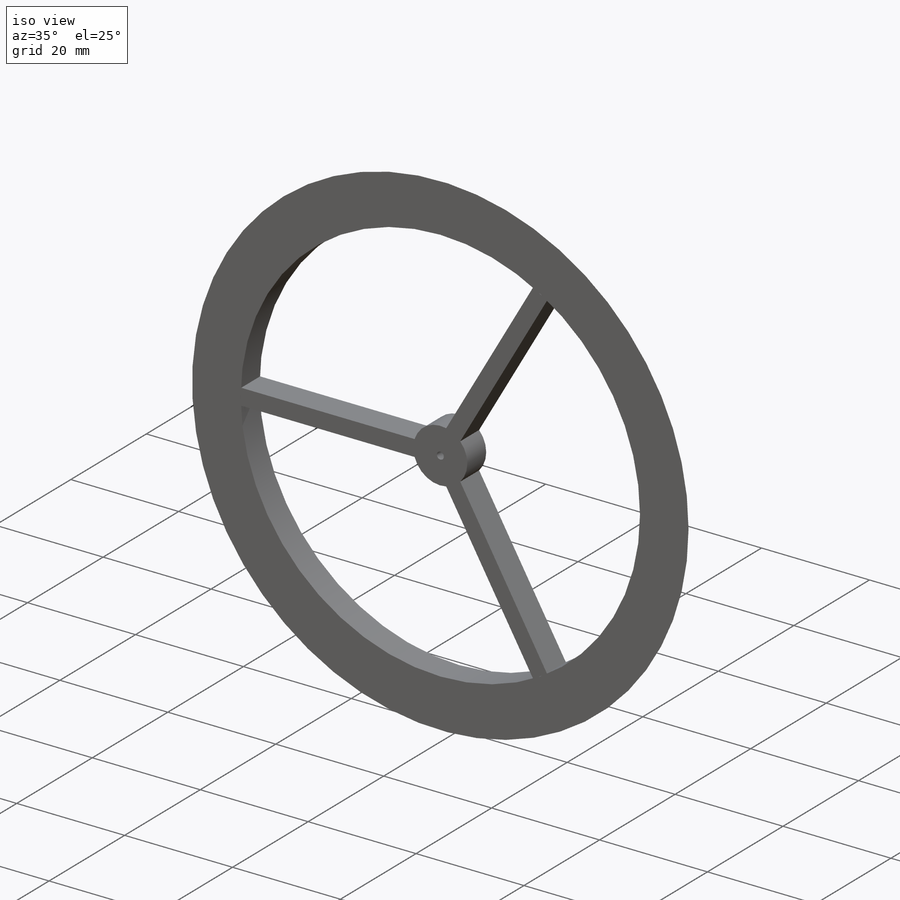
[diagram: iso view]
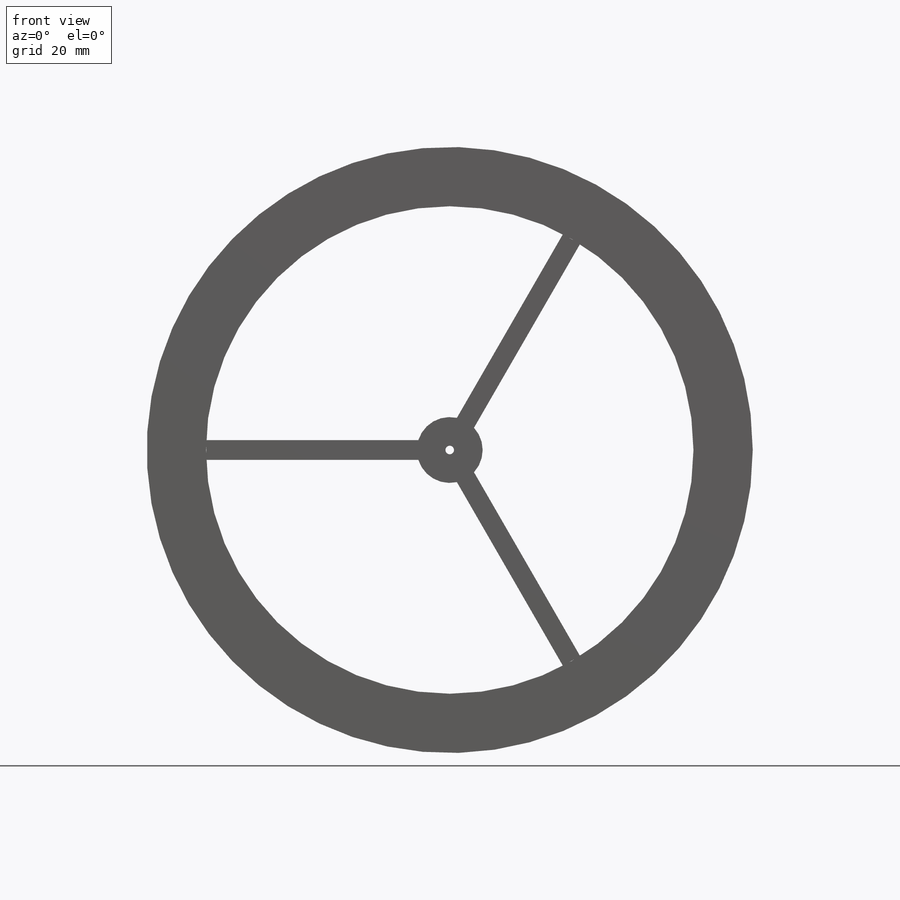
[diagram: front view]
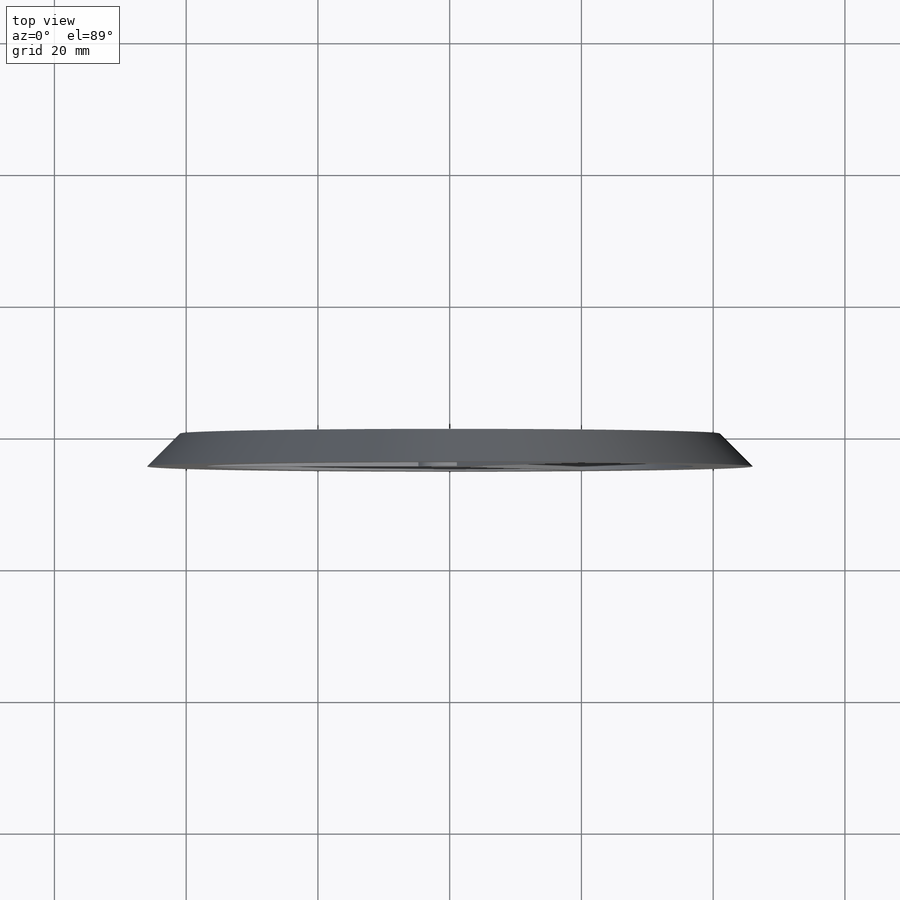
[diagram: top view]
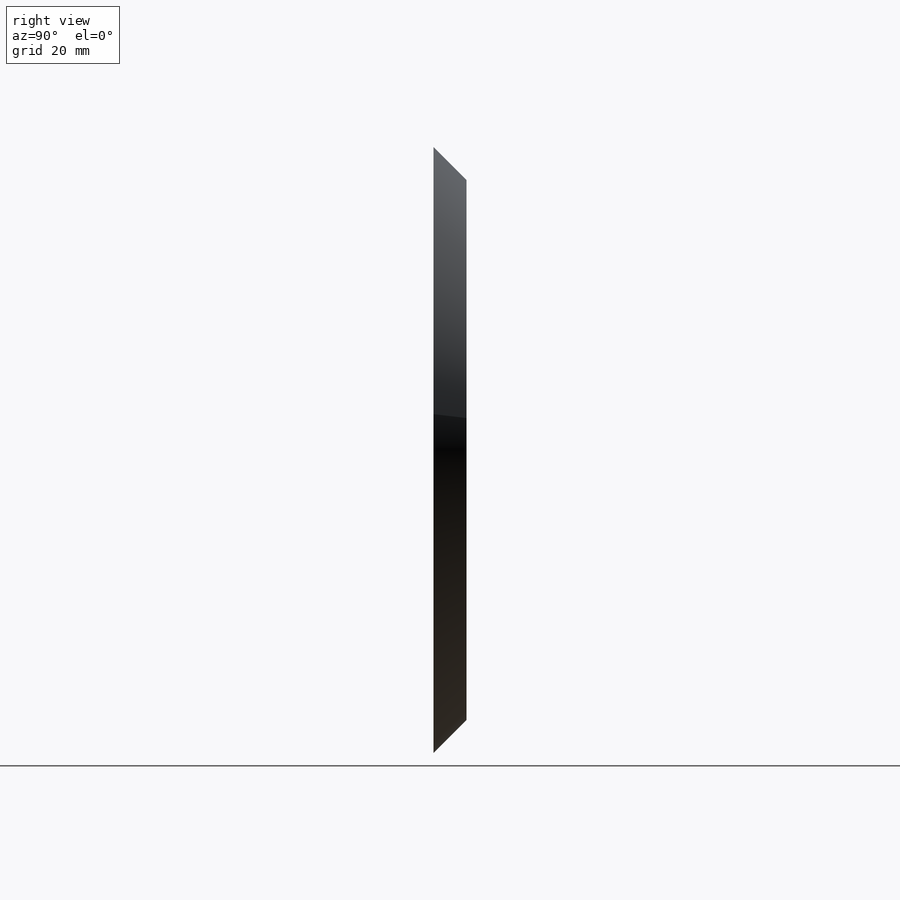
[diagram: right view]
SOLIDWORKS PART (.sldprt)
format: sldprt  version: not decoded by parser v0  size: 240,640 bytes
history: native  units: mm
features: sketch x4, extrude x3, material x1, cut_revolve x1, pattern_circular x1 (+16 scaffold rows collapsed)
feature tree (26):
  scaffold x16  (default folders/planes/origin — collapsed)
  material  "Brass"
  sketch  "Sketch1"  dims[D1=92.0mm D2=74.0mm]
  extrude  "Boss-Extrude1"  Depth=5mm
  sketch  "Sketch6"
  cut_revolve  "Cut-Revolve2"  Angle=360deg
  sketch  "Sketch7"  dims[D1=1.5mm]
  extrude  "Boss-Extrude4"  [1 undecoded]
  pattern_circular  "CirPattern4"  Count=3 Angle=120deg
  sketch  "Sketch8"  dims[D1=10.0mm]
  extrude  "Boss-Extrude5"  [1 undecoded]
decode coverage: 6 of 9 modeling features carry decoded parameters
note: 2 parameter values undecoded
note: suppression state not decoded; provenance and decode notes live in map.json
